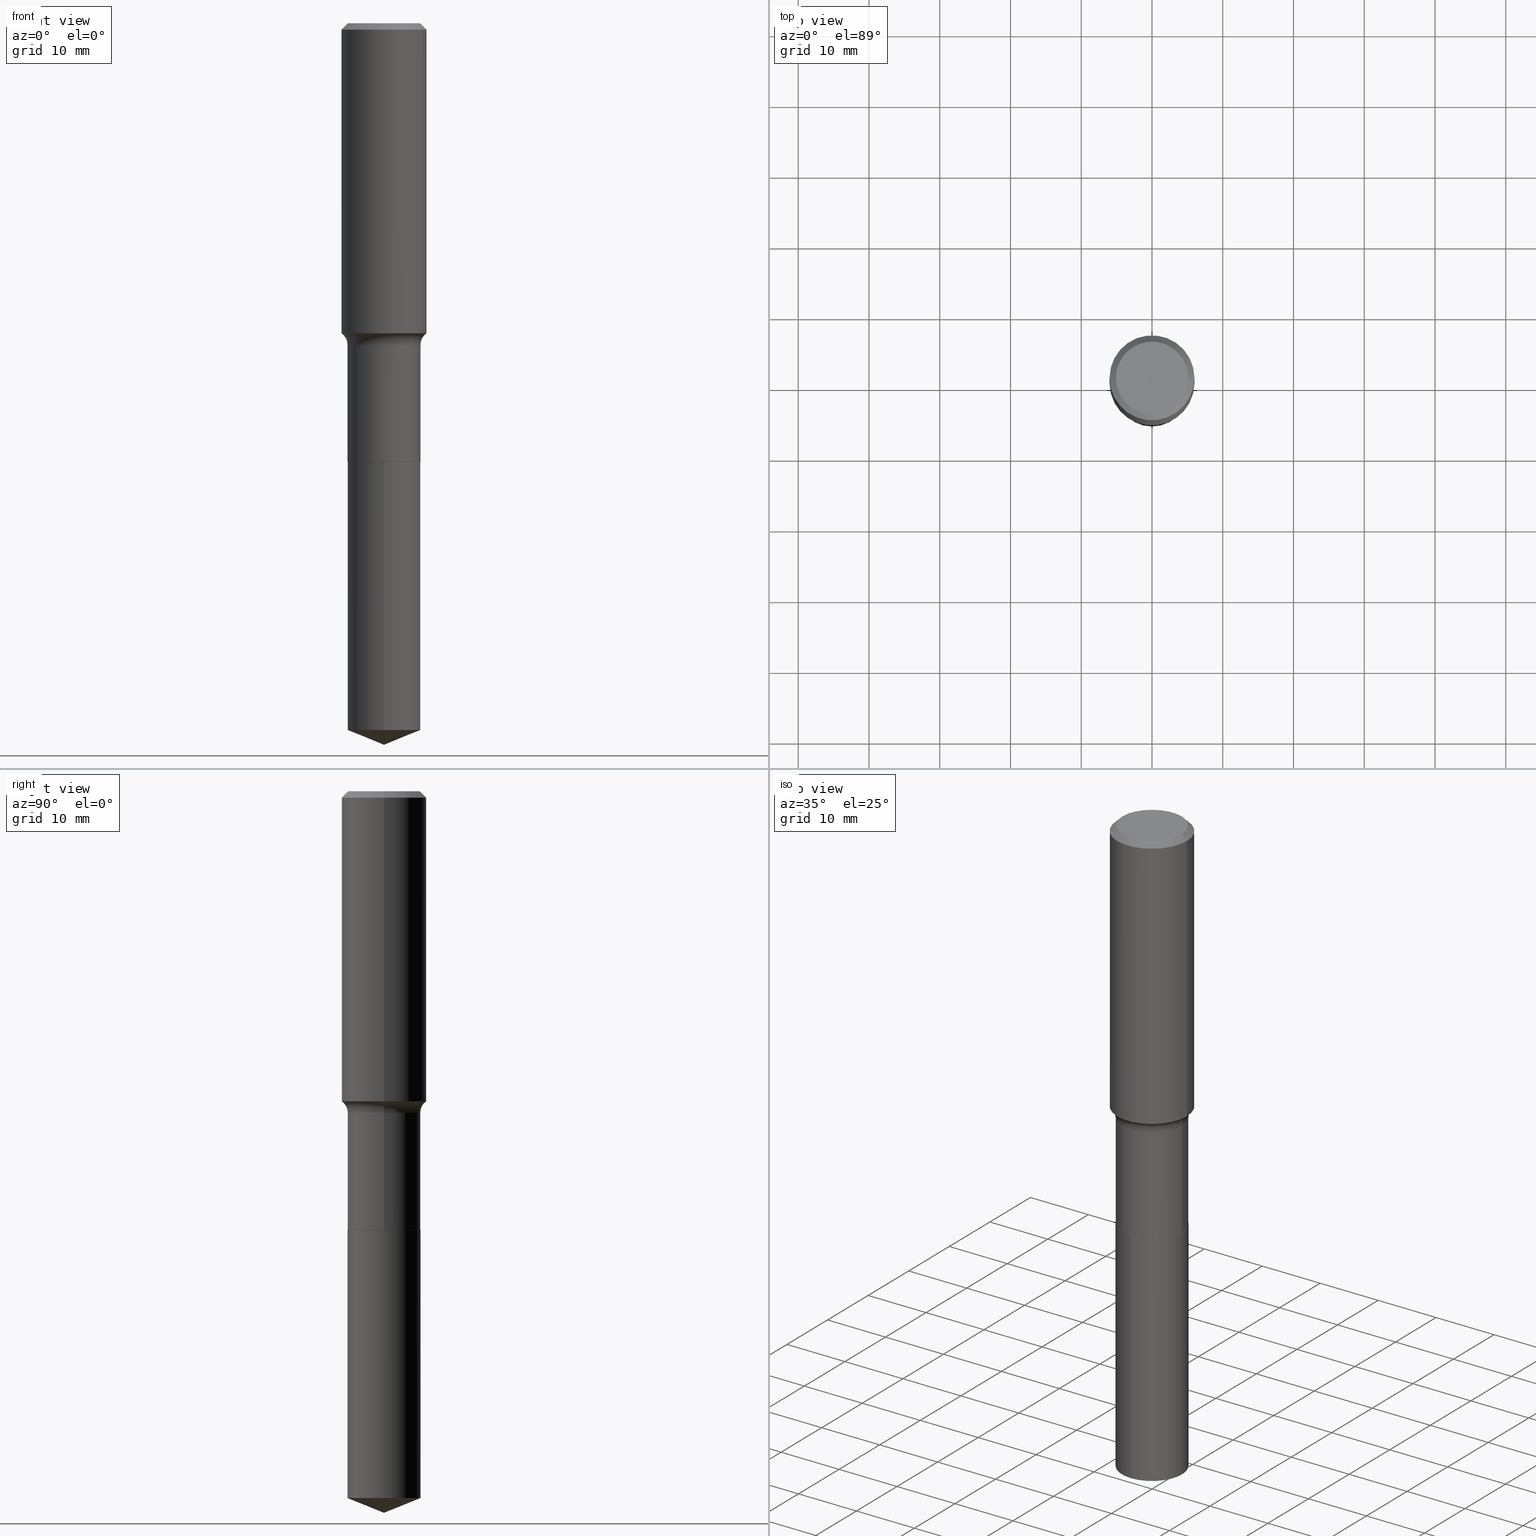
[diagram: canonical four-view strip — front | top / right | iso, engineering-drawing reading convention]
A machine part, canonical four-view strip (front | top / right | iso — engineering-drawing reading convention). The complete STEP part file that produces these views, byte-faithful:
ISO-10303-21;
HEADER;
FILE_DESCRIPTION (( 'STEP AP203' ),
    '1' );
FILE_NAME ('56823.STEP',
    '2024-04-19T14:09:40',
    ( '' ),
    ( '' ),
    'SwSTEP 2.0',
    'SolidWorks 2023',
    '' );
FILE_SCHEMA (( 'CONFIG_CONTROL_DESIGN' ));
ENDSEC;

DATA;
#1 = EDGE_CURVE ( 'NONE', #73, #65, #165, .T. ) ;
#2 = CARTESIAN_POINT ( 'NONE',  ( 0.2026000000000000023, -9.937105038481469945E-15, -2.440900000000000070 ) ) ;
#3 = CARTESIAN_POINT ( 'NONE',  ( 1.443112296328823056E-15, 0.2030999999999914818, -2.440900000000000514 ) ) ;
#4 = CARTESIAN_POINT ( 'NONE',  ( -5.008488096090115757E-47, 7.150793614331959538E-33, 2.048068690724057264E-18 ) ) ;
#5 = AXIS2_PLACEMENT_3D ( 'NONE', #288, #185, #447 ) ;
#6 = AXIS2_PLACEMENT_3D ( 'NONE', #224, #479, #151 ) ;
#7 = ORIENTED_EDGE ( 'NONE', *, *, #41, .T. ) ;
#8 = DIRECTION ( 'NONE',  ( -2.445468806185136597E-29, 3.491481338843145583E-15, 1.000000000000000000 ) ) ;
#9 = EDGE_LOOP ( 'NONE', ( #256, #149, #150, #193 ) ) ;
#10 = DIRECTION ( 'NONE',  ( -2.445468806185136597E-29, 3.491481338843145583E-15, 1.000000000000000000 ) ) ;
#11 =( NAMED_UNIT ( * ) SI_UNIT ( $, .STERADIAN. ) SOLID_ANGLE_UNIT ( ) );
#12 = ORIENTED_EDGE ( 'NONE', *, *, #345, .F. ) ;
#13 = PRODUCT_RELATED_PRODUCT_CATEGORY ( 'detail', '', ( #316 ) ) ;
#14 = ADVANCED_FACE ( 'NONE', ( #132 ), #121, .T. ) ;
#15 = ORIENTED_EDGE ( 'NONE', *, *, #455, .F. ) ;
#16 = LINE ( 'NONE', #105, #336 ) ;
#17 = AXIS2_PLACEMENT_3D ( 'NONE', #102, #147, #60 ) ;
#18 = VERTEX_POINT ( 'NONE', #163 ) ;
#19 = CARTESIAN_POINT ( 'NONE',  ( -1.418239719838021019E-15, -0.2031000000000085515, -2.440899999999999181 ) ) ;
#20 = CARTESIAN_POINT ( 'NONE',  ( -0.2007700000000000040, 1.463821008716676943E-15, 4.096137381438094301E-18 ) ) ;
#21 = ORIENTED_EDGE ( 'NONE', *, *, #401, .F. ) ;
#22 = ORIENTED_EDGE ( 'NONE', *, *, #368, .F. ) ;
#23 = VECTOR ( 'NONE', #489, 39.37007874015748143 ) ;
#24 = LOCAL_TIME ( 10, 9, 40.00000000000000000, #364 ) ;
#25 = CC_DESIGN_PERSON_AND_ORGANIZATION_ASSIGNMENT ( #110, #160, ( #381 ) ) ;
#26 = VERTEX_POINT ( 'NONE', #417 ) ;
#27 = APPROVAL_DATE_TIME ( #383, #129 ) ;
#28 = DIRECTION ( 'NONE',  ( -2.445557876646980104E-29, 3.491353784872209594E-15, 1.000000000000000000 ) ) ;
#29 = CC_DESIGN_PERSON_AND_ORGANIZATION_ASSIGNMENT ( #481, #360, ( #182 ) ) ;
#30 = SHAPE_DEFINITION_REPRESENTATION ( #126, #161 ) ;
#31 = CARTESIAN_POINT ( 'NONE',  ( 0.2007700000000000040, -1.560767496960719869E-15, 4.096137381458473721E-18 ) ) ;
#32 = ORIENTED_EDGE ( 'NONE', *, *, #439, .T. ) ;
#33 =( GEOMETRIC_REPRESENTATION_CONTEXT ( 3 ) GLOBAL_UNCERTAINTY_ASSIGNED_CONTEXT ( ( #34 ) ) GLOBAL_UNIT_ASSIGNED_CONTEXT ( ( #425, #45, #11 ) ) REPRESENTATION_CONTEXT ( 'NONE', 'WORKASPACE' ) );
#34 = UNCERTAINTY_MEASURE_WITH_UNIT (LENGTH_MEASURE( 1.000000000000000082E-05 ), #425, 'distance_accuracy_value', 'NONE');
#35 = DIRECTION ( 'NONE',  ( 1.000000000000000000, -6.982962677686266711E-15, 4.876176775795935793E-29 ) ) ;
#36 = CARTESIAN_POINT ( 'NONE',  ( 4.375921881787682519E-29, -6.247656707725923885E-15, -1.789399999999999880 ) ) ;
#37 = DIRECTION ( 'NONE',  ( -2.445468806185136597E-29, 3.491481338843145583E-15, 1.000000000000000000 ) ) ;
#38 = ORIENTED_EDGE ( 'NONE', *, *, #199, .F. ) ;
#39 = LINE ( 'NONE', #202, #227 ) ;
#40 = CARTESIAN_POINT ( 'NONE',  ( 5.969144809017299038E-29, -8.522356799982232966E-15, -2.440900000000000070 ) ) ;
#41 = EDGE_CURVE ( 'NONE', #374, #371, #85, .T. ) ;
#42 = VECTOR ( 'NONE', #198, 39.37007874015748143 ) ;
#43 = AXIS2_PLACEMENT_3D ( 'NONE', #77, #382, #486 ) ;
#44 = CARTESIAN_POINT ( 'NONE',  ( -0.2362000000000002153, -4.346665305163778709E-15, -1.725619203517045674 ) ) ;
#45 =( NAMED_UNIT ( * ) PLANE_ANGLE_UNIT ( ) SI_UNIT ( $, .RADIAN. ) );
#46 = DIRECTION ( 'NONE',  ( 2.445557876646979824E-29, -3.491353784872209594E-15, -1.000000000000000000 ) ) ;
#47 = EDGE_LOOP ( 'NONE', ( #424, #449 ) ) ;
#48 = DIRECTION ( 'NONE',  ( -2.445557876646980384E-29, 3.491353784872209594E-15, 1.000000000000000000 ) ) ;
#49 = CARTESIAN_POINT ( 'NONE',  ( 0.2811000000000000165, -8.210567516423532707E-15, -1.789399999999999880 ) ) ;
#50 = ADVANCED_FACE ( 'NONE', ( #448 ), #118, .T. ) ;
#51 = LINE ( 'NONE', #311, #197 ) ;
#52 = DIRECTION ( 'NONE',  ( 1.000000000000000000, -6.982962677686265922E-15, 0.000000000000000000 ) ) ;
#53 = MANIFOLD_SOLID_BREP ( 'Body-Move/Copy2[2]', #268 ) ;
#54 = DIRECTION ( 'NONE',  ( 2.445468806185136597E-29, -3.491481338843145583E-15, -1.000000000000000000 ) ) ;
#55 = DIRECTION ( 'NONE',  ( -6.982962677686266711E-15, -1.000000000000000000, 2.690150658458161520E-15 ) ) ;
#56 = DIRECTION ( 'NONE',  ( -6.982962677686266711E-15, -1.000000000000000000, 3.491481338843145583E-15 ) ) ;
#57 = DIRECTION ( 'NONE',  ( -0.7071067811865451302, 2.468850131082231817E-15, -0.7071067811865499042 ) ) ;
#58 = DATE_AND_TIME ( #394, #114 ) ;
#59 = EDGE_LOOP ( 'NONE', ( #192, #342, #87 ) ) ;
#60 = DIRECTION ( 'NONE',  ( -6.982962677686266711E-15, -1.000000000000000000, 4.035225987687242674E-15 ) ) ;
#61 = PERSON_AND_ORGANIZATION ( #255, #72 ) ;
#62 = CONICAL_SURFACE ( 'NONE', #5, 0.2026000000000000023, 0.7853981633975849475 ) ;
#63 = VECTOR ( 'NONE', #57, 39.37007874015748143 ) ;
#64 = ORIENTED_EDGE ( 'NONE', *, *, #232, .T. ) ;
#65 = VERTEX_POINT ( 'NONE', #403 ) ;
#66 = APPLICATION_CONTEXT ( 'configuration controlled 3d designs of mechanical parts and assemblies' ) ;
#67 = CARTESIAN_POINT ( 'NONE',  ( 8.664295980313996991E-31, -1.237031838352134818E-16, -0.03543000000000023908 ) ) ;
#68 = EDGE_LOOP ( 'NONE', ( #380, #7, #22, #480 ) ) ;
#69 = DIRECTION ( 'NONE',  ( 1.000000000000000000, -6.982962677686262766E-15, 0.000000000000000000 ) ) ;
#70 = EDGE_LOOP ( 'NONE', ( #473, #280, #460, #142 ) ) ;
#71 = CIRCLE ( 'NONE', #477, 0.2361999999999999933 ) ;
#72 = ORGANIZATION ( 'UNSPECIFIED', 'UNSPECIFIED', '' ) ;
#73 = VERTEX_POINT ( 'NONE', #328 ) ;
#74 = DATE_TIME_ROLE ( 'creation_date' ) ;
#75 = COORDINATED_UNIVERSAL_TIME_OFFSET ( 5, 0, .BEHIND. ) ;
#76 = DIRECTION ( 'NONE',  ( -6.982962677686266711E-15, -1.000000000000000000, 3.498761904101824797E-15 ) ) ;
#77 = CARTESIAN_POINT ( 'NONE',  ( 8.664295980313996991E-31, -1.237031838352134818E-16, -0.03543000000000023908 ) ) ;
#78 = LINE ( 'NONE', #92, #211 ) ;
#79 = AXIS2_PLACEMENT_3D ( 'NONE', #138, #243, #274 ) ;
#80 = DIRECTION ( 'NONE',  ( 1.000000000000000000, -6.982962677686266711E-15, 4.883557194083112901E-29 ) ) ;
#81 = DIRECTION ( 'NONE',  ( -2.445468806185136877E-29, 3.491481338843145188E-15, 1.000000000000000000 ) ) ;
#82 = ADVANCED_FACE ( 'NONE', ( #189 ), #492, .F. ) ;
#83 = DIRECTION ( 'NONE',  ( -0.7071067811866441621, 7.493145998870704414E-15, 0.7071067811864508723 ) ) ;
#84 = DIRECTION ( 'NONE',  ( -2.445468806185136597E-29, 3.491481338843145583E-15, 1.000000000000000000 ) ) ;
#85 = LINE ( 'NONE', #3, #309 ) ;
#86 = LINE ( 'NONE', #164, #363 ) ;
#87 = ORIENTED_EDGE ( 'NONE', *, *, #95, .F. ) ;
#88 = DIRECTION ( 'NONE',  ( -2.445468806185136597E-29, 3.491481338843145583E-15, 1.000000000000000000 ) ) ;
#89 = CONICAL_SURFACE ( 'NONE', #362, 97.44436430772850599, 1.186823891356145300 ) ;
#90 = AXIS2_PLACEMENT_3D ( 'NONE', #231, #451, #76 ) ;
#91 = PLANE ( 'NONE',  #113 ) ;
#92 = CARTESIAN_POINT ( 'NONE',  ( 9.820191941070650311E-29, -1.402085208688664788E-14, -4.015699999999999825 ) ) ;
#93 = DIRECTION ( 'NONE',  ( 6.982962677686265922E-15, 1.000000000000000000, -3.491353784872209594E-15 ) ) ;
#94 = EDGE_LOOP ( 'NONE', ( #32, #327, #230, #248 ) ) ;
#95 = EDGE_CURVE ( 'NONE', #374, #18, #285, .T. ) ;
#96 = DIRECTION ( 'NONE',  ( 1.000000000000000000, 0.000000000000000000, 0.000000000000000000 ) ) ;
#97 = DIRECTION ( 'NONE',  ( 1.000000000000000000, -6.982962677686266711E-15, 4.876140833081945105E-29 ) ) ;
#98 = EDGE_LOOP ( 'NONE', ( #324, #220, #353, #386 ) ) ;
#99 = APPLICATION_PROTOCOL_DEFINITION ( 'international standard', 'config_control_design', 1994, #463 ) ;
#100 = AXIS2_PLACEMENT_3D ( 'NONE', #36, #137, #52 ) ;
#101 = EDGE_LOOP ( 'NONE', ( #323, #146 ) ) ;
#102 = CARTESIAN_POINT ( 'NONE',  ( 5.969144809017299038E-29, -8.522356799982232966E-15, -2.440900000000000070 ) ) ;
#103 = CALENDAR_DATE ( 2024, 19, 4 ) ;
#104 = ORIENTED_EDGE ( 'NONE', *, *, #119, .T. ) ;
#105 = CARTESIAN_POINT ( 'NONE',  ( 0.2026000000000000023, -9.937105038481469945E-15, -2.440900000000000070 ) ) ;
#106 = SECURITY_CLASSIFICATION_LEVEL ( 'unclassified' ) ;
#107 = AXIS2_PLACEMENT_3D ( 'NONE', #283, #490, #350 ) ;
#108 = ORIENTED_EDGE ( 'NONE', *, *, #354, .T. ) ;
#109 = VERTEX_POINT ( 'NONE', #270 ) ;
#110 = PERSON_AND_ORGANIZATION ( #255, #72 ) ;
#111 = CC_DESIGN_DATE_AND_TIME_ASSIGNMENT ( #434, #397, ( #182 ) ) ;
#112 = TOROIDAL_SURFACE ( 'NONE', #407, 0.2811000000000000165, 0.07799999999999999989 ) ;
#113 = AXIS2_PLACEMENT_3D ( 'NONE', #385, #46, #93 ) ;
#114 = LOCAL_TIME ( 10, 9, 40.00000000000000000, #75 ) ;
#115 = DIRECTION ( 'NONE',  ( -2.445468806185136597E-29, 3.491481338843145583E-15, 1.000000000000000000 ) ) ;
#116 = DATE_AND_TIME ( #157, #294 ) ;
#117 = EDGE_CURVE ( 'NONE', #18, #275, #155, .T. ) ;
#118 = CYLINDRICAL_SURFACE ( 'NONE', #217, 0.2031000000000000028 ) ;
#119 = EDGE_CURVE ( 'NONE', #26, #476, #71, .T. ) ;
#120 = CARTESIAN_POINT ( 'NONE',  ( 9.820626765251278540E-29, -1.402022939391133127E-14, -4.015699999999999825 ) ) ;
#121 = CYLINDRICAL_SURFACE ( 'NONE', #123, 0.2362000000000001321 ) ;
#122 = DIRECTION ( 'NONE',  ( 1.000000000000000000, -6.982962677686265922E-15, 0.000000000000000000 ) ) ;
#123 = AXIS2_PLACEMENT_3D ( 'NONE', #301, #37, #201 ) ;
#124 = ADVANCED_FACE ( 'NONE', ( #295 ), #62, .T. ) ;
#125 = CIRCLE ( 'NONE', #234, 0.2031000000000000028 ) ;
#126 = PRODUCT_DEFINITION_SHAPE ( 'NONE', 'NONE',  #381 ) ;
#127 = DIRECTION ( 'NONE',  ( -2.445557876646980384E-29, 3.491353784872209594E-15, 1.000000000000000000 ) ) ;
#128 = LINE ( 'NONE', #452, #42 ) ;
#129 = APPROVAL ( #317, 'UNSPECIFIED' ) ;
#130 = FACE_OUTER_BOUND ( 'NONE', #47, .T. ) ;
#131 = FACE_OUTER_BOUND ( 'NONE', #395, .T. ) ;
#132 = FACE_OUTER_BOUND ( 'NONE', #94, .T. ) ;
#133 = CIRCLE ( 'NONE', #443, 0.2031000000000000583 ) ;
#134 = CIRCLE ( 'NONE', #6, 0.2361999999999999933 ) ;
#135 = PRODUCT_DEFINITION_FORMATION_WITH_SPECIFIED_SOURCE ( 'ANY', '', #316, .NOT_KNOWN. ) ;
#136 = VERTEX_POINT ( 'NONE', #261 ) ;
#137 = DIRECTION ( 'NONE',  ( -2.445468806185136597E-29, 3.491481338843145583E-15, 1.000000000000000000 ) ) ;
#138 = CARTESIAN_POINT ( 'NONE',  ( -1.001697619218023151E-46, 1.430158722866391908E-32, 4.096137381448114529E-18 ) ) ;
#139 = VERTEX_POINT ( 'NONE', #20 ) ;
#140 = EDGE_CURVE ( 'NONE', #73, #221, #133, .T. ) ;
#141 = FACE_OUTER_BOUND ( 'NONE', #101, .T. ) ;
#142 = ORIENTED_EDGE ( 'NONE', *, *, #375, .F. ) ;
#143 = FACE_OUTER_BOUND ( 'NONE', #318, .T. ) ;
#144 = AXIS2_PLACEMENT_3D ( 'NONE', #225, #191, #159 ) ;
#145 = CIRCLE ( 'NONE', #279, 0.2031000000000000028 ) ;
#146 = ORIENTED_EDGE ( 'NONE', *, *, #389, .F. ) ;
#147 = DIRECTION ( 'NONE',  ( -2.445557876646980384E-29, 3.491353784872209594E-15, 1.000000000000000000 ) ) ;
#148 = CALENDAR_DATE ( 2024, 19, 4 ) ;
#149 = ORIENTED_EDGE ( 'NONE', *, *, #455, .T. ) ;
#150 = ORIENTED_EDGE ( 'NONE', *, *, #388, .T. ) ;
#151 = DIRECTION ( 'NONE',  ( 1.000000000000000000, -6.982962677686266711E-15, 0.000000000000000000 ) ) ;
#152 = EDGE_CURVE ( 'NONE', #168, #65, #346, .T. ) ;
#153 = EDGE_CURVE ( 'NONE', #109, #476, #128, .T. ) ;
#154 = ORIENTED_EDGE ( 'NONE', *, *, #119, .F. ) ;
#155 = LINE ( 'NONE', #19, #278 ) ;
#156 = ADVANCED_FACE ( 'NONE', ( #264 ), #112, .F. ) ;
#157 = CALENDAR_DATE ( 2024, 19, 4 ) ;
#158 = CARTESIAN_POINT ( 'NONE',  ( -8.646139681404300228E-28, 1.234343326797667560E-13, 35.35437874015748605 ) ) ;
#159 = DIRECTION ( 'NONE',  ( -1.000000000000000000, 7.105427357600997914E-15, 0.000000000000000000 ) ) ;
#160 = PERSON_AND_ORGANIZATION_ROLE ( 'creator' ) ;
#161 = ADVANCED_BREP_SHAPE_REPRESENTATION ( '56823', ( #379, #53, #310 ), #33 ) ;
#162 = DIRECTION ( 'NONE',  ( 1.000000000000000000, -6.982962677686265922E-15, 0.000000000000000000 ) ) ;
#163 = CARTESIAN_POINT ( 'NONE',  ( -1.418239719837984140E-15, -0.2031000000000136307, -3.933642273532879319 ) ) ;
#164 = CARTESIAN_POINT ( 'NONE',  ( -0.2026000000000000023, -7.082797217332269973E-15, -2.440900000000000070 ) ) ;
#165 = LINE ( 'NONE', #352, #23 ) ;
#166 = CARTESIAN_POINT ( 'NONE',  ( 4.219947933554975725E-29, -6.024967247029136681E-15, -1.725619203517045674 ) ) ;
#167 = DIRECTION ( 'NONE',  ( 1.000000000000000000, -6.982962677686266711E-15, 4.876176775795936353E-29 ) ) ;
#168 = VERTEX_POINT ( 'NONE', #44 ) ;
#169 = AXIS2_PLACEMENT_3D ( 'NONE', #4, #414, #172 ) ;
#170 = CONICAL_SURFACE ( 'NONE', #43, 0.2361999999999999933, 0.7853981633974449483 ) ;
#171 = PERSON_AND_ORGANIZATION_ROLE ( 'design_owner' ) ;
#172 = DIRECTION ( 'NONE',  ( -1.000000000000000000, 6.982962677686265922E-15, -4.876176775795935793E-29 ) ) ;
#173 = ORIENTED_EDGE ( 'NONE', *, *, #401, .T. ) ;
#174 = FACE_OUTER_BOUND ( 'NONE', #68, .T. ) ;
#175 = CARTESIAN_POINT ( 'NONE',  ( 5.969144809017299038E-29, -8.522356799982232966E-15, -2.440900000000000070 ) ) ;
#176 = CC_DESIGN_DATE_AND_TIME_ASSIGNMENT ( #438, #74, ( #381 ) ) ;
#177 = DIRECTION ( 'NONE',  ( -2.445557876646980384E-29, 3.491353784872209594E-15, 1.000000000000000000 ) ) ;
#178 = DIRECTION ( 'NONE',  ( -2.445468806185136877E-29, 3.491481338843145188E-15, 1.000000000000000000 ) ) ;
#179 = APPROVAL_DATE_TIME ( #58, #271 ) ;
#180 = AXIS2_PLACEMENT_3D ( 'NONE', #332, #177, #55 ) ;
#181 = LOCAL_TIME ( 10, 9, 40.00000000000000000, #349 ) ;
#182 = SECURITY_CLASSIFICATION ( '', '', #106 ) ;
#183 = DIRECTION ( 'NONE',  ( -2.445557876646980384E-29, 3.491353784872209594E-15, 1.000000000000000000 ) ) ;
#184 = ORIENTED_EDGE ( 'NONE', *, *, #354, .F. ) ;
#185 = DIRECTION ( 'NONE',  ( -2.445468806185136597E-29, 3.491481338843145583E-15, 1.000000000000000000 ) ) ;
#186 = ORIENTED_EDGE ( 'NONE', *, *, #289, .T. ) ;
#187 = DIRECTION ( 'NONE',  ( -6.982962677686266711E-15, -1.000000000000000000, 4.035225987687242674E-15 ) ) ;
#188 = CARTESIAN_POINT ( 'NONE',  ( 5.967922074614207358E-29, -8.520611059312812251E-15, -2.440399999999999903 ) ) ;
#189 = FACE_OUTER_BOUND ( 'NONE', #215, .T. ) ;
#190 = APPROVAL_PERSON_ORGANIZATION ( #260, #271, #251 ) ;
#191 = DIRECTION ( 'NONE',  ( 7.105427357601001859E-15, 1.000000000000000000, -3.491481338843145583E-15 ) ) ;
#192 = ORIENTED_EDGE ( 'NONE', *, *, #475, .F. ) ;
#193 = ORIENTED_EDGE ( 'NONE', *, *, #272, .F. ) ;
#194 = PERSON_AND_ORGANIZATION ( #255, #72 ) ;
#195 = DIRECTION ( 'NONE',  ( 1.000000000000000000, -6.982962677686266711E-15, 0.000000000000000000 ) ) ;
#196 = AXIS2_PLACEMENT_3D ( 'NONE', #419, #88, #167 ) ;
#197 = VECTOR ( 'NONE', #423, 39.37007874015748143 ) ;
#198 = DIRECTION ( 'NONE',  ( -2.445468806185136877E-29, 3.491481338843145188E-15, 1.000000000000000000 ) ) ;
#199 = EDGE_CURVE ( 'NONE', #421, #18, #78, .T. ) ;
#200 = CARTESIAN_POINT ( 'NONE',  ( 4.375921881787682519E-29, -6.247656707725923885E-15, -1.789399999999999880 ) ) ;
#201 = DIRECTION ( 'NONE',  ( 1.000000000000000000, -6.982962677686266711E-15, 4.876176775795936353E-29 ) ) ;
#202 = CARTESIAN_POINT ( 'NONE',  ( 0.2361999999999999933, -1.744152810908849251E-15, -0.03543000000000023908 ) ) ;
#203 = CIRCLE ( 'NONE', #290, 0.2026000000000000023 ) ;
#204 = CONICAL_SURFACE ( 'NONE', #459, 0.2361999999999999933, 0.7853981633974449483 ) ;
#205 = PERSON_AND_ORGANIZATION ( #255, #72 ) ;
#206 = ORIENTED_EDGE ( 'NONE', *, *, #272, .T. ) ;
#207 = CARTESIAN_POINT ( 'NONE',  ( 0.2031000000000000583, -9.938850779150892237E-15, -2.440399999999999903 ) ) ;
#208 = DIRECTION ( 'NONE',  ( 1.000000000000000000, -6.982962677686265922E-15, 4.876176775795935793E-29 ) ) ;
#209 = DIRECTION ( 'NONE',  ( -6.982962677686266711E-15, -1.000000000000000000, 2.690150658458161520E-15 ) ) ;
#210 = CARTESIAN_POINT ( 'NONE',  ( 5.969144809017299038E-29, -8.522356799982232966E-15, -2.440900000000000070 ) ) ;
#211 = VECTOR ( 'NONE', #304, 39.37007874015748143 ) ;
#212 = TOROIDAL_SURFACE ( 'NONE', #450, 0.2811000000000000165, 0.07799999999999999989 ) ;
#213 = DIRECTION ( 'NONE',  ( 1.000000000000000000, -6.982962677686261189E-15, 0.000000000000000000 ) ) ;
#214 = PERSON_AND_ORGANIZATION ( #255, #72 ) ;
#215 = EDGE_LOOP ( 'NONE', ( #226, #186 ) ) ;
#216 = CARTESIAN_POINT ( 'NONE',  ( -1.418239719838021019E-15, -0.2031000000000085515, -2.440899999999999181 ) ) ;
#217 = AXIS2_PLACEMENT_3D ( 'NONE', #175, #436, #187 ) ;
#218 = APPROVAL_STATUS ( 'not_yet_approved' ) ;
#219 = CIRCLE ( 'NONE', #482, 0.07799999999999999989 ) ;
#220 = ORIENTED_EDGE ( 'NONE', *, *, #152, .T. ) ;
#221 = VERTEX_POINT ( 'NONE', #207 ) ;
#222 = CARTESIAN_POINT ( 'NONE',  ( 5.969144809017299038E-29, -8.522356799982232966E-15, -2.440900000000000070 ) ) ;
#223 = ORIENTED_EDGE ( 'NONE', *, *, #140, .T. ) ;
#224 = CARTESIAN_POINT ( 'NONE',  ( 8.664295980313996991E-31, -1.237031838352134818E-16, -0.03543000000000023908 ) ) ;
#225 = CARTESIAN_POINT ( 'NONE',  ( -0.2811000000000000165, -4.250321077504282146E-15, -1.789399999999999880 ) ) ;
#226 = ORIENTED_EDGE ( 'NONE', *, *, #335, .T. ) ;
#227 = VECTOR ( 'NONE', #347, 39.37007874015748143 ) ;
#228 = ORIENTED_EDGE ( 'NONE', *, *, #373, .F. ) ;
#229 = VERTEX_POINT ( 'NONE', #2 ) ;
#230 = ORIENTED_EDGE ( 'NONE', *, *, #388, .F. ) ;
#231 = CARTESIAN_POINT ( 'NONE',  ( -8.646139681404300228E-28, 1.234343326797667560E-13, 35.35437874015748605 ) ) ;
#232 = EDGE_CURVE ( 'NONE', #229, #136, #203, .T. ) ;
#233 = DIRECTION ( 'NONE',  ( -2.445468806185136597E-29, 3.491481338843145583E-15, 1.000000000000000000 ) ) ;
#234 = AXIS2_PLACEMENT_3D ( 'NONE', #222, #325, #406 ) ;
#235 = DESIGN_CONTEXT ( 'detailed design', #463, 'design' ) ;
#236 = CARTESIAN_POINT ( 'NONE',  ( 0.000000000000000000, 0.000000000000000000, 0.000000000000000000 ) ) ;
#237 = DIRECTION ( 'NONE',  ( -2.445468806185136597E-29, 3.491481338843145583E-15, 1.000000000000000000 ) ) ;
#238 = EDGE_LOOP ( 'NONE', ( #281, #462, #287, #440 ) ) ;
#239 = FACE_OUTER_BOUND ( 'NONE', #465, .T. ) ;
#240 = CIRCLE ( 'NONE', #17, 0.2031000000000000028 ) ;
#241 = EDGE_CURVE ( 'NONE', #221, #390, #341, .T. ) ;
#242 = VERTEX_POINT ( 'NONE', #31 ) ;
#243 = DIRECTION ( 'NONE',  ( -2.445468806185136597E-29, 3.491481338843145583E-15, 1.000000000000000000 ) ) ;
#244 = CARTESIAN_POINT ( 'NONE',  ( 0.2361999999999999933, -1.773078968304709711E-15, -0.03543000000000023908 ) ) ;
#245 = DIRECTION ( 'NONE',  ( -6.982962677686266711E-15, -1.000000000000000000, 4.035225987687242674E-15 ) ) ;
#246 = DIMENSIONAL_EXPONENTS ( 1.000000000000000000, 0.000000000000000000, 0.000000000000000000, 0.000000000000000000, 0.000000000000000000, 0.000000000000000000, 0.000000000000000000 ) ;
#247 = CALENDAR_DATE ( 2024, 19, 4 ) ;
#248 = ORIENTED_EDGE ( 'NONE', *, *, #153, .F. ) ;
#249 = CARTESIAN_POINT ( 'NONE',  ( 1.443112296328859935E-15, 0.2030999999999915095, -2.440900000000000514 ) ) ;
#250 = EDGE_CURVE ( 'NONE', #390, #65, #257, .T. ) ;
#251 = APPROVAL_ROLE ( '' ) ;
#252 = ADVANCED_FACE ( 'NONE', ( #131 ), #267, .T. ) ;
#253 = AXIS2_PLACEMENT_3D ( 'NONE', #307, #237, #339 ) ;
#254 = ADVANCED_FACE ( 'NONE', ( #239 ), #265, .T. ) ;
#255 = PERSON ( 'UNSPECIFIED', 'UNSPECIFIED', 'UNSPECIFIED', ('UNSPECIFIED'), ('UNSPECIFIED'), ('UNSPECIFIED') ) ;
#256 = ORIENTED_EDGE ( 'NONE', *, *, #289, .F. ) ;
#257 = CIRCLE ( 'NONE', #320, 0.2030999999999999750 ) ;
#258 = CIRCLE ( 'NONE', #79, 0.2007700000000000040 ) ;
#259 = APPROVAL_PERSON_ORGANIZATION ( #61, #400, #446 ) ;
#260 = PERSON_AND_ORGANIZATION ( #255, #72 ) ;
#261 = CARTESIAN_POINT ( 'NONE',  ( -0.2026000000000000023, -7.080147990158159560E-15, -2.440900000000000070 ) ) ;
#262 = EDGE_CURVE ( 'NONE', #65, #390, #458, .T. ) ;
#263 = CARTESIAN_POINT ( 'NONE',  ( 4.219947933554975725E-29, -6.024967247029136681E-15, -1.725619203517045674 ) ) ;
#264 = FACE_OUTER_BOUND ( 'NONE', #238, .T. ) ;
#265 = CYLINDRICAL_SURFACE ( 'NONE', #253, 0.2031000000000000028 ) ;
#266 = FACE_OUTER_BOUND ( 'NONE', #284, .T. ) ;
#267 = CYLINDRICAL_SURFACE ( 'NONE', #196, 0.2362000000000001321 ) ;
#268 = CLOSED_SHELL ( 'NONE', ( #124, #484, #14, #433, #453, #254, #156, #252, #437, #82, #485, #337 ) ) ;
#269 = ORIENTED_EDGE ( 'NONE', *, *, #1, .T. ) ;
#270 = CARTESIAN_POINT ( 'NONE',  ( 0.2362000000000002153, -7.674343031498633206E-15, -1.725619203517045674 ) ) ;
#271 = APPROVAL ( #372, 'UNSPECIFIED' ) ;
#272 = EDGE_CURVE ( 'NONE', #139, #26, #474, .T. ) ;
#273 = APPLICATION_PROTOCOL_DEFINITION ( 'international standard', 'config_control_design', 1994, #66 ) ;
#274 = DIRECTION ( 'NONE',  ( 1.000000000000000000, -6.982962677686266711E-15, 4.876140833081945105E-29 ) ) ;
#275 = VERTEX_POINT ( 'NONE', #216 ) ;
#276 = PERSON_AND_ORGANIZATION ( #255, #72 ) ;
#277 = DIRECTION ( 'NONE',  ( 1.000000000000000000, -6.982962677686262766E-15, 0.000000000000000000 ) ) ;
#278 = VECTOR ( 'NONE', #28, 39.37007874015748143 ) ;
#279 = AXIS2_PLACEMENT_3D ( 'NONE', #387, #48, #209 ) ;
#280 = ORIENTED_EDGE ( 'NONE', *, *, #95, .T. ) ;
#281 = ORIENTED_EDGE ( 'NONE', *, *, #152, .F. ) ;
#282 = ORIENTED_EDGE ( 'NONE', *, *, #241, .F. ) ;
#283 = CARTESIAN_POINT ( 'NONE',  ( 5.969144809017299038E-29, -8.522356799982232966E-15, -2.440900000000000070 ) ) ;
#284 = EDGE_LOOP ( 'NONE', ( #418, #269, #333, #282 ) ) ;
#285 = CIRCLE ( 'NONE', #180, 0.2031000000000000028 ) ;
#286 = CIRCLE ( 'NONE', #370, 0.2031000000000000583 ) ;
#287 = ORIENTED_EDGE ( 'NONE', *, *, #487, .T. ) ;
#288 = CARTESIAN_POINT ( 'NONE',  ( 5.969144809017299038E-29, -8.522356799982232966E-15, -2.440900000000000070 ) ) ;
#289 = EDGE_CURVE ( 'NONE', #242, #139, #258, .T. ) ;
#290 = AXIS2_PLACEMENT_3D ( 'NONE', #40, #306, #416 ) ;
#291 = CC_DESIGN_PERSON_AND_ORGANIZATION_ASSIGNMENT ( #214, #471, ( #135 ) ) ;
#292 = CONICAL_SURFACE ( 'NONE', #90, 97.44436430772850599, 1.186823891356145300 ) ;
#293 = CARTESIAN_POINT ( 'NONE',  ( 1.443112296328858752E-15, 0.2030999999999862082, -3.933642273532880651 ) ) ;
#294 = LOCAL_TIME ( 10, 9, 40.00000000000000000, #334 ) ;
#295 = FACE_OUTER_BOUND ( 'NONE', #315, .T. ) ;
#296 = DIRECTION ( 'NONE',  ( -2.445557876646980104E-29, 3.491353784872209594E-15, 1.000000000000000000 ) ) ;
#297 = DIRECTION ( 'NONE',  ( -6.982962677686266711E-15, -1.000000000000000000, 3.498761904101824797E-15 ) ) ;
#298 = EDGE_LOOP ( 'NONE', ( #15, #358, #206, #104 ) ) ;
#299 = CC_DESIGN_PERSON_AND_ORGANIZATION_ASSIGNMENT ( #276, #171, ( #316 ) ) ;
#300 = CYLINDRICAL_SURFACE ( 'NONE', #321, 0.2031000000000000028 ) ;
#301 = CARTESIAN_POINT ( 'NONE',  ( 0.000000000000000000, 0.000000000000000000, 0.000000000000000000 ) ) ;
#302 = CARTESIAN_POINT ( 'NONE',  ( 4.375921881787682519E-29, -6.247656707725923885E-15, -1.789399999999999880 ) ) ;
#303 = CONICAL_SURFACE ( 'NONE', #348, 0.2026000000000000023, 0.7853981633975849475 ) ;
#304 = DIRECTION ( 'NONE',  ( -6.474490251793179418E-15, -0.9271838545667866471, 0.3746065934159141797 ) ) ;
#305 = FACE_OUTER_BOUND ( 'NONE', #98, .T. ) ;
#306 = DIRECTION ( 'NONE',  ( -2.445468806185136597E-29, 3.491481338843145583E-15, 1.000000000000000000 ) ) ;
#307 = CARTESIAN_POINT ( 'NONE',  ( 0.000000000000000000, 0.000000000000000000, 0.000000000000000000 ) ) ;
#308 = DIRECTION ( 'NONE',  ( 1.000000000000000000, -6.982962677686270655E-15, 0.000000000000000000 ) ) ;
#309 = VECTOR ( 'NONE', #296, 39.37007874015748143 ) ;
#310 = AXIS2_PLACEMENT_3D ( 'NONE', #422, #464, #96 ) ;
#311 = CARTESIAN_POINT ( 'NONE',  ( 9.820630578146073895E-29, -1.402022939391133127E-14, -4.015699999999999825 ) ) ;
#312 = MECHANICAL_CONTEXT ( 'NONE', #66, 'mechanical' ) ;
#313 = CARTESIAN_POINT ( 'NONE',  ( 8.664295980313996991E-31, -1.237031838352134818E-16, -0.03543000000000023908 ) ) ;
#314 = ORIENTED_EDGE ( 'NONE', *, *, #426, .T. ) ;
#315 = EDGE_LOOP ( 'NONE', ( #64, #173, #12, #184 ) ) ;
#316 = PRODUCT ( '56823', '56823', '', ( #312 ) ) ;
#317 = APPROVAL_STATUS ( 'not_yet_approved' ) ;
#318 = EDGE_LOOP ( 'NONE', ( #21, #428, #108, #369 ) ) ;
#319 = CARTESIAN_POINT ( 'NONE',  ( 5.967922074614207358E-29, -8.520611059312812251E-15, -2.440399999999999903 ) ) ;
#320 = AXIS2_PLACEMENT_3D ( 'NONE', #456, #84, #122 ) ;
#321 = AXIS2_PLACEMENT_3D ( 'NONE', #236, #378, #35 ) ;
#322 = COORDINATED_UNIVERSAL_TIME_OFFSET ( 5, 0, .BEHIND. ) ;
#323 = ORIENTED_EDGE ( 'NONE', *, *, #232, .F. ) ;
#324 = ORIENTED_EDGE ( 'NONE', *, *, #426, .F. ) ;
#325 = DIRECTION ( 'NONE',  ( -2.445557876646980384E-29, 3.491353784872209594E-15, 1.000000000000000000 ) ) ;
#326 = ADVANCED_FACE ( 'NONE', ( #174 ), #468, .T. ) ;
#327 = ORIENTED_EDGE ( 'NONE', *, *, #343, .T. ) ;
#328 = CARTESIAN_POINT ( 'NONE',  ( -0.2031000000000000583, -5.941021587190602993E-15, -2.440399999999999903 ) ) ;
#329 = CLOSED_SHELL ( 'NONE', ( #326, #409, #392, #50, #472 ) ) ;
#330 = VECTOR ( 'NONE', #178, 39.37007874015748143 ) ;
#331 = EDGE_LOOP ( 'NONE', ( #38, #367, #228 ) ) ;
#332 = CARTESIAN_POINT ( 'NONE',  ( 9.619732433859556057E-29, -1.373404818652000039E-14, -3.933642273532879763 ) ) ;
#333 = ORIENTED_EDGE ( 'NONE', *, *, #250, .F. ) ;
#334 = COORDINATED_UNIVERSAL_TIME_OFFSET ( 5, 0, .BEHIND. ) ;
#335 = EDGE_CURVE ( 'NONE', #139, #242, #430, .T. ) ;
#336 = VECTOR ( 'NONE', #429, 39.37007874015748143 ) ;
#337 = ADVANCED_FACE ( 'NONE', ( #143 ), #303, .T. ) ;
#338 = CC_DESIGN_APPROVAL ( #400, ( #182 ) ) ;
#339 = DIRECTION ( 'NONE',  ( 1.000000000000000000, -6.982962677686266711E-15, 4.876176775795935793E-29 ) ) ;
#340 = DIRECTION ( 'NONE',  ( 1.000000000000000000, -6.982962677686265922E-15, 0.000000000000000000 ) ) ;
#341 = LINE ( 'NONE', #351, #467 ) ;
#342 = ORIENTED_EDGE ( 'NONE', *, *, #199, .T. ) ;
#343 = EDGE_CURVE ( 'NONE', #168, #26, #396, .T. ) ;
#344 = DIRECTION ( 'NONE',  ( -2.445468806185136597E-29, 3.491481338843145583E-15, 1.000000000000000000 ) ) ;
#345 = EDGE_CURVE ( 'NONE', #221, #73, #286, .T. ) ;
#346 = CIRCLE ( 'NONE', #144, 0.07799999999999999989 ) ;
#347 = DIRECTION ( 'NONE',  ( 0.7071067811865451302, -7.319954787623248157E-15, -0.7071067811865499042 ) ) ;
#348 = AXIS2_PLACEMENT_3D ( 'NONE', #432, #361, #213 ) ;
#349 = COORDINATED_UNIVERSAL_TIME_OFFSET ( 5, 0, .BEHIND. ) ;
#350 = DIRECTION ( 'NONE',  ( 1.000000000000000000, -6.982962677686261189E-15, 0.000000000000000000 ) ) ;
#351 = CARTESIAN_POINT ( 'NONE',  ( 0.2031000000000000028, -1.418239719838080775E-15, 9.903515031641546145E-30 ) ) ;
#352 = CARTESIAN_POINT ( 'NONE',  ( -0.2031000000000000028, 1.443112296328763497E-15, -9.990357168307714203E-30 ) ) ;
#353 = ORIENTED_EDGE ( 'NONE', *, *, #262, .T. ) ;
#354 = EDGE_CURVE ( 'NONE', #229, #221, #16, .T. ) ;
#355 = CARTESIAN_POINT ( 'NONE',  ( -1.001697619218023151E-46, 1.430158722866391908E-32, 4.096137381448114529E-18 ) ) ;
#356 = CC_DESIGN_SECURITY_CLASSIFICATION ( #182, ( #135 ) ) ;
#357 = DIRECTION ( 'NONE',  ( -1.000000000000000000, 6.982962677686266711E-15, 0.000000000000000000 ) ) ;
#358 = ORIENTED_EDGE ( 'NONE', *, *, #335, .F. ) ;
#359 = CARTESIAN_POINT ( 'NONE',  ( -0.2362000000000001321, 1.678301941865357577E-15, -1.161852468318209457E-29 ) ) ;
#360 = PERSON_AND_ORGANIZATION_ROLE ( 'classification_officer' ) ;
#361 = DIRECTION ( 'NONE',  ( -2.445468806185136597E-29, 3.491481338843145583E-15, 1.000000000000000000 ) ) ;
#362 = AXIS2_PLACEMENT_3D ( 'NONE', #158, #127, #297 ) ;
#363 = VECTOR ( 'NONE', #83, 39.37007874015748143 ) ;
#364 = COORDINATED_UNIVERSAL_TIME_OFFSET ( 5, 0, .BEHIND. ) ;
#365 = ORIENTED_EDGE ( 'NONE', *, *, #241, .T. ) ;
#366 = CC_DESIGN_PERSON_AND_ORGANIZATION_ASSIGNMENT ( #194, #411, ( #135 ) ) ;
#367 = ORIENTED_EDGE ( 'NONE', *, *, #475, .T. ) ;
#368 = EDGE_CURVE ( 'NONE', #275, #371, #240, .T. ) ;
#369 = ORIENTED_EDGE ( 'NONE', *, *, #140, .F. ) ;
#370 = AXIS2_PLACEMENT_3D ( 'NONE', #319, #10, #277 ) ;
#371 = VERTEX_POINT ( 'NONE', #249 ) ;
#372 = APPROVAL_STATUS ( 'not_yet_approved' ) ;
#373 = EDGE_CURVE ( 'NONE', #18, #374, #145, .T. ) ;
#374 = VERTEX_POINT ( 'NONE', #293 ) ;
#375 = EDGE_CURVE ( 'NONE', #371, #275, #125, .T. ) ;
#376 = CIRCLE ( 'NONE', #413, 0.2362000000000002431 ) ;
#377 = DIRECTION ( 'NONE',  ( 1.000000000000000000, -6.982962677686266711E-15, 4.883557194083112901E-29 ) ) ;
#378 = DIRECTION ( 'NONE',  ( -2.445468806185136597E-29, 3.491481338843145583E-15, 1.000000000000000000 ) ) ;
#379 = MANIFOLD_SOLID_BREP ( 'Body-Move/Copy2[1]', #329 ) ;
#380 = ORIENTED_EDGE ( 'NONE', *, *, #373, .T. ) ;
#381 = PRODUCT_DEFINITION ( 'UNKNOWN', '', #135, #235 ) ;
#382 = DIRECTION ( 'NONE',  ( 2.445468806185136597E-29, -3.491481338843145583E-15, -1.000000000000000000 ) ) ;
#383 = DATE_AND_TIME ( #103, #181 ) ;
#384 = APPROVAL_PERSON_ORGANIZATION ( #205, #129, #431 ) ;
#385 = CARTESIAN_POINT ( 'NONE',  ( 5.969144809017299038E-29, -8.522356799982232966E-15, -2.440900000000000070 ) ) ;
#386 = ORIENTED_EDGE ( 'NONE', *, *, #487, .F. ) ;
#387 = CARTESIAN_POINT ( 'NONE',  ( 9.619732433859556057E-29, -1.373404818652000039E-14, -3.933642273532879763 ) ) ;
#388 = EDGE_CURVE ( 'NONE', #476, #26, #134, .T. ) ;
#389 = EDGE_CURVE ( 'NONE', #136, #229, #469, .T. ) ;
#390 = VERTEX_POINT ( 'NONE', #415 ) ;
#391 = FACE_OUTER_BOUND ( 'NONE', #9, .T. ) ;
#392 = ADVANCED_FACE ( 'NONE', ( #483 ), #292, .T. ) ;
#393 = CARTESIAN_POINT ( 'NONE',  ( 5.969144809017299038E-29, -8.522356799982232966E-15, -2.440900000000000070 ) ) ;
#394 = CALENDAR_DATE ( 2024, 19, 4 ) ;
#395 = EDGE_LOOP ( 'NONE', ( #441, #314, #402, #154 ) ) ;
#396 = LINE ( 'NONE', #359, #330 ) ;
#397 = DATE_TIME_ROLE ( 'classification_date' ) ;
#398 = ORIENTED_EDGE ( 'NONE', *, *, #262, .F. ) ;
#399 = CIRCLE ( 'NONE', #478, 0.2362000000000002431 ) ;
#400 = APPROVAL ( #218, 'UNSPECIFIED' ) ;
#401 = EDGE_CURVE ( 'NONE', #136, #73, #86, .T. ) ;
#402 = ORIENTED_EDGE ( 'NONE', *, *, #153, .T. ) ;
#403 = CARTESIAN_POINT ( 'NONE',  ( -0.2030999999999999750, -5.941021587190603782E-15, -1.789399999999999880 ) ) ;
#404 = DIRECTION ( 'NONE',  ( -2.445468806185136597E-29, 3.491481338843145583E-15, 1.000000000000000000 ) ) ;
#405 = ORIENTED_EDGE ( 'NONE', *, *, #1, .F. ) ;
#406 = DIRECTION ( 'NONE',  ( -6.982962677686266711E-15, -1.000000000000000000, 4.035225987687242674E-15 ) ) ;
#407 = AXIS2_PLACEMENT_3D ( 'NONE', #200, #488, #377 ) ;
#408 = CC_DESIGN_APPROVAL ( #129, ( #381 ) ) ;
#409 = ADVANCED_FACE ( 'NONE', ( #454 ), #89, .T. ) ;
#410 = APPROVAL_DATE_TIME ( #116, #400 ) ;
#411 = PERSON_AND_ORGANIZATION_ROLE ( 'design_supplier' ) ;
#412 = FACE_OUTER_BOUND ( 'NONE', #298, .T. ) ;
#413 = AXIS2_PLACEMENT_3D ( 'NONE', #263, #344, #162 ) ;
#414 = DIRECTION ( 'NONE',  ( 2.438088387897960049E-29, -3.491481338843145188E-15, -1.000000000000000000 ) ) ;
#415 = CARTESIAN_POINT ( 'NONE',  ( 0.2030999999999999750, -7.665896427564004661E-15, -1.789399999999999880 ) ) ;
#416 = DIRECTION ( 'NONE',  ( 1.000000000000000000, -6.982962677686261189E-15, 0.000000000000000000 ) ) ;
#417 = CARTESIAN_POINT ( 'NONE',  ( -0.2361999999999999933, -1.396033273566817159E-15, -0.03543000000000023908 ) ) ;
#418 = ORIENTED_EDGE ( 'NONE', *, *, #345, .T. ) ;
#419 = CARTESIAN_POINT ( 'NONE',  ( 0.000000000000000000, 0.000000000000000000, 0.000000000000000000 ) ) ;
#420 = AXIS2_PLACEMENT_3D ( 'NONE', #393, #466, #208 ) ;
#421 = VERTEX_POINT ( 'NONE', #120 ) ;
#422 = CARTESIAN_POINT ( 'NONE',  ( 0.000000000000000000, 0.000000000000000000, 0.000000000000000000 ) ) ;
#423 = DIRECTION ( 'NONE',  ( 6.588037525764792868E-15, 0.9271838545667890896, 0.3746065934159077404 ) ) ;
#424 = ORIENTED_EDGE ( 'NONE', *, *, #368, .T. ) ;
#425 =( CONVERSION_BASED_UNIT ( 'INCH', #457 ) LENGTH_UNIT ( ) NAMED_UNIT ( #246 ) );
#426 = EDGE_CURVE ( 'NONE', #168, #109, #376, .T. ) ;
#427 = PLANE ( 'NONE',  #420 ) ;
#428 = ORIENTED_EDGE ( 'NONE', *, *, #389, .T. ) ;
#429 = DIRECTION ( 'NONE',  ( 0.7071067811866441621, -2.468850131083269169E-15, 0.7071067811864508723 ) ) ;
#430 = CIRCLE ( 'NONE', #444, 0.2007700000000000040 ) ;
#431 = APPROVAL_ROLE ( '' ) ;
#432 = CARTESIAN_POINT ( 'NONE',  ( 5.969144809017299038E-29, -8.522356799982232966E-15, -2.440900000000000070 ) ) ;
#433 = ADVANCED_FACE ( 'NONE', ( #305 ), #212, .F. ) ;
#434 = DATE_AND_TIME ( #148, #470 ) ;
#435 = CARTESIAN_POINT ( 'NONE',  ( -0.2361999999999999933, 1.525672600634282550E-15, -0.03543000000000023908 ) ) ;
#436 = DIRECTION ( 'NONE',  ( -2.445557876646980384E-29, 3.491353784872209594E-15, 1.000000000000000000 ) ) ;
#437 = ADVANCED_FACE ( 'NONE', ( #412 ), #170, .T. ) ;
#438 = DATE_AND_TIME ( #247, #24 ) ;
#439 = EDGE_CURVE ( 'NONE', #109, #168, #399, .T. ) ;
#440 = ORIENTED_EDGE ( 'NONE', *, *, #250, .T. ) ;
#441 = ORIENTED_EDGE ( 'NONE', *, *, #343, .F. ) ;
#442 = DIRECTION ( 'NONE',  ( -2.445468806185136597E-29, 3.491481338843145583E-15, 1.000000000000000000 ) ) ;
#443 = AXIS2_PLACEMENT_3D ( 'NONE', #188, #404, #69 ) ;
#444 = AXIS2_PLACEMENT_3D ( 'NONE', #355, #8, #97 ) ;
#445 = CC_DESIGN_APPROVAL ( #271, ( #135 ) ) ;
#446 = APPROVAL_ROLE ( '' ) ;
#447 = DIRECTION ( 'NONE',  ( 1.000000000000000000, -6.982962677686261189E-15, 0.000000000000000000 ) ) ;
#448 = FACE_OUTER_BOUND ( 'NONE', #70, .T. ) ;
#449 = ORIENTED_EDGE ( 'NONE', *, *, #375, .T. ) ;
#450 = AXIS2_PLACEMENT_3D ( 'NONE', #302, #115, #80 ) ;
#451 = DIRECTION ( 'NONE',  ( -2.445557876646980384E-29, 3.491353784872209594E-15, 1.000000000000000000 ) ) ;
#452 = CARTESIAN_POINT ( 'NONE',  ( 0.2362000000000001321, -1.649375784469497117E-15, 1.151752954443000789E-29 ) ) ;
#453 = ADVANCED_FACE ( 'NONE', ( #266 ), #300, .T. ) ;
#454 = FACE_OUTER_BOUND ( 'NONE', #331, .T. ) ;
#455 = EDGE_CURVE ( 'NONE', #242, #476, #39, .T. ) ;
#456 = CARTESIAN_POINT ( 'NONE',  ( 4.375921881787682519E-29, -6.247656707725923885E-15, -1.789399999999999880 ) ) ;
#457 = LENGTH_MEASURE_WITH_UNIT ( LENGTH_MEASURE( 0.02539999999999999897 ), #461 );
#458 = CIRCLE ( 'NONE', #100, 0.2030999999999999750 ) ;
#459 = AXIS2_PLACEMENT_3D ( 'NONE', #313, #54, #357 ) ;
#460 = ORIENTED_EDGE ( 'NONE', *, *, #117, .T. ) ;
#461 =( LENGTH_UNIT ( ) NAMED_UNIT ( * ) SI_UNIT ( $, .METRE. ) );
#462 = ORIENTED_EDGE ( 'NONE', *, *, #439, .F. ) ;
#463 = APPLICATION_CONTEXT ( 'configuration controlled 3d designs of mechanical parts and assemblies' ) ;
#464 = DIRECTION ( 'NONE',  ( 0.000000000000000000, 0.000000000000000000, 1.000000000000000000 ) ) ;
#465 = EDGE_LOOP ( 'NONE', ( #405, #223, #365, #398 ) ) ;
#466 = DIRECTION ( 'NONE',  ( -2.438088387897960049E-29, 3.491481338843145188E-15, 1.000000000000000000 ) ) ;
#467 = VECTOR ( 'NONE', #81, 39.37007874015748143 ) ;
#468 = CYLINDRICAL_SURFACE ( 'NONE', #491, 0.2031000000000000028 ) ;
#469 = CIRCLE ( 'NONE', #107, 0.2026000000000000023 ) ;
#470 = LOCAL_TIME ( 10, 9, 40.00000000000000000, #322 ) ;
#471 = PERSON_AND_ORGANIZATION_ROLE ( 'creator' ) ;
#472 = ADVANCED_FACE ( 'NONE', ( #130 ), #91, .F. ) ;
#473 = ORIENTED_EDGE ( 'NONE', *, *, #41, .F. ) ;
#474 = LINE ( 'NONE', #435, #63 ) ;
#475 = EDGE_CURVE ( 'NONE', #421, #374, #51, .T. ) ;
#476 = VERTEX_POINT ( 'NONE', #244 ) ;
#477 = AXIS2_PLACEMENT_3D ( 'NONE', #67, #442, #195 ) ;
#478 = AXIS2_PLACEMENT_3D ( 'NONE', #166, #233, #340 ) ;
#479 = DIRECTION ( 'NONE',  ( -2.445468806185136597E-29, 3.491481338843145583E-15, 1.000000000000000000 ) ) ;
#480 = ORIENTED_EDGE ( 'NONE', *, *, #117, .F. ) ;
#481 = PERSON_AND_ORGANIZATION ( #255, #72 ) ;
#482 = AXIS2_PLACEMENT_3D ( 'NONE', #49, #56, #308 ) ;
#483 = FACE_OUTER_BOUND ( 'NONE', #59, .T. ) ;
#484 = ADVANCED_FACE ( 'NONE', ( #391 ), #204, .T. ) ;
#485 = ADVANCED_FACE ( 'NONE', ( #141 ), #427, .F. ) ;
#486 = DIRECTION ( 'NONE',  ( -1.000000000000000000, 6.982962677686266711E-15, 0.000000000000000000 ) ) ;
#487 = EDGE_CURVE ( 'NONE', #109, #390, #219, .T. ) ;
#488 = DIRECTION ( 'NONE',  ( -2.445468806185136597E-29, 3.491481338843145583E-15, 1.000000000000000000 ) ) ;
#489 = DIRECTION ( 'NONE',  ( -2.445468806185136877E-29, 3.491481338843145188E-15, 1.000000000000000000 ) ) ;
#490 = DIRECTION ( 'NONE',  ( -2.445468806185136597E-29, 3.491481338843145583E-15, 1.000000000000000000 ) ) ;
#491 = AXIS2_PLACEMENT_3D ( 'NONE', #210, #183, #245 ) ;
#492 = PLANE ( 'NONE',  #169 ) ;
ENDSEC;
END-ISO-10303-21;
